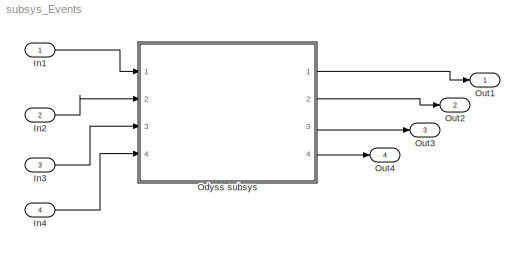
MODEL subsys_Events
KIND model
CONFIG AbsTol = auto
CONFIG FixedStep = auto
CONFIG MaxStep = auto
CONFIG MinStep = auto
CONFIG RelTol = 1e-3
CONFIG Solver = FixedStepDiscrete
CONFIG SolverMode = Auto
CONFIG StartTime = 0.0
CONFIG StopTime = 10.0
BLOCK [Inport] In1
  SampleTime = 1
BLOCK [Inport] In2
  Port = 2
  SampleTime = 1
BLOCK [Inport] In3
  Port = 3
  SampleTime = 1
BLOCK [Inport] In4
  Port = 4
  SampleTime = 1
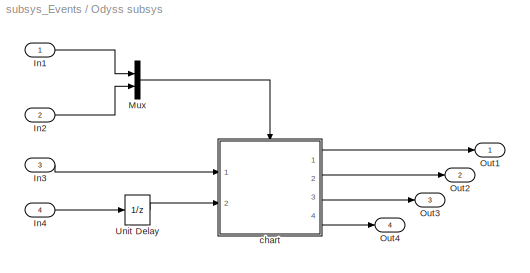
BLOCK [SubSystem] Odyss subsys
  Ports = [4, 4]
  TreatAsAtomicUnit = off
BLOCK [Inport] Odyss subsys/In1
  SampleTime = 1
BLOCK [Inport] Odyss subsys/In2
  Port = 2
  SampleTime = 1
BLOCK [Inport] Odyss subsys/In3
  Port = 3
  SampleTime = 1
BLOCK [Inport] Odyss subsys/In4
  Port = 4
  SampleTime = 1
BLOCK [Mux] Odyss subsys/Mux
  DisplayOption = bar
  Inputs = 2
  Ports = [2, 1]
BLOCK [Outport] Odyss subsys/Out1
BLOCK [Outport] Odyss subsys/Out2
  Port = 2
BLOCK [Outport] Odyss subsys/Out3
  Port = 3
BLOCK [Outport] Odyss subsys/Out4
  Port = 4
BLOCK [UnitDelay] Odyss subsys/Unit Delay
  SampleTime = -1
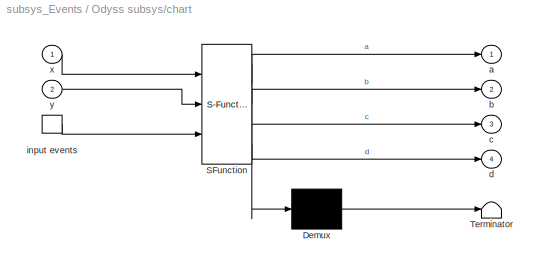
BLOCK [SubSystem] Odyss subsys/chart
  MaskDescription = Stateflow diagram
  MaskDisplay = plot(sf('Private','sfblk','xIcon'),sf('Private','sfblk','yIcon'));text(0.5,0,sf('Private', 'sfblk', 'tIcon'),'HorizontalAl','Center','VerticalAl','Bottom');
  MaskIconFrame = off
  MaskIconOpaque = off
  MaskIconRotate = none
  MaskIconUnits = autoscale
  MaskSelfModifiable = on
  MaskType = Stateflow
  Ports = [2, 4, 0, 1]
  TreatAsAtomicUnit = off
BLOCK [Demux] Odyss subsys/chart/ Demux 
  Outputs = 1
  Ports = [1, 1]
BLOCK [S-Function] Odyss subsys/chart/ SFunction 
  FunctionName = sf_sfun
  PortCounts = [3 5]
  Ports = [3, 5]
  Tag = Stateflow S-Function subsys_Events 2
BLOCK [Terminator] Odyss subsys/chart/ Terminator 
BLOCK [TriggerPort] Odyss subsys/chart/ input events 
  Ports = [0, 1]
  ShowOutputPort = on
  TriggerType = either
BLOCK [Outport] Odyss subsys/chart/a
BLOCK [Outport] Odyss subsys/chart/b
  Port = 2
BLOCK [Outport] Odyss subsys/chart/c
  Port = 3
BLOCK [Outport] Odyss subsys/chart/d
  Port = 4
BLOCK [Inport] Odyss subsys/chart/x
  PortDimensions = 1
BLOCK [Inport] Odyss subsys/chart/y
  Port = 2
  PortDimensions = 1
BLOCK [Outport] Out1
BLOCK [Outport] Out2
  Port = 2
BLOCK [Outport] Out3
  Port = 3
BLOCK [Outport] Out4
  Port = 4
LINE In1:1 -> Odyss subsys:1
LINE In2:1 -> Odyss subsys:2
LINE In3:1 -> Odyss subsys:3
LINE In4:1 -> Odyss subsys:4
LINE Odyss subsys/In1:1 -> Odyss subsys/Mux:1
LINE Odyss subsys/In2:1 -> Odyss subsys/Mux:2
LINE Odyss subsys/In3:1 -> Odyss subsys/chart:1
LINE Odyss subsys/In4:1 -> Odyss subsys/Unit Delay:1
LINE Odyss subsys/Mux:1 -> Odyss subsys/chart:trigger
LINE Odyss subsys/Unit Delay:1 -> Odyss subsys/chart:2
LINE Odyss subsys/chart/ Demux :1 -> Odyss subsys/chart/ Terminator :1
LINE Odyss subsys/chart/ SFunction :1 -> Odyss subsys/chart/ Demux :1
LINE Odyss subsys/chart/ SFunction :2 -> Odyss subsys/chart/a:1
LINE Odyss subsys/chart/ SFunction :3 -> Odyss subsys/chart/b:1
LINE Odyss subsys/chart/ SFunction :4 -> Odyss subsys/chart/c:1
LINE Odyss subsys/chart/ SFunction :5 -> Odyss subsys/chart/d:1
LINE Odyss subsys/chart/ input events :1 -> Odyss subsys/chart/ SFunction :3
LINE Odyss subsys/chart/x:1 -> Odyss subsys/chart/ SFunction :1
LINE Odyss subsys/chart/y:1 -> Odyss subsys/chart/ SFunction :2
LINE Odyss subsys/chart:1 -> Odyss subsys/Out1:1
LINE Odyss subsys/chart:2 -> Odyss subsys/Out2:1
LINE Odyss subsys/chart:3 -> Odyss subsys/Out3:1
LINE Odyss subsys/chart:4 -> Odyss subsys/Out4:1
LINE Odyss subsys:1 -> Out1:1
LINE Odyss subsys:2 -> Out2:1
LINE Odyss subsys:3 -> Out3:1
LINE Odyss subsys:4 -> Out4:1
CHART Odyss subsys/chart states=12 transitions=12
  STATE_LABEL 'Cb/\\nen:c=x+6'
  STATE_LABEL 'B'
  STATE_LABEL 'Ba/\\nen:b=x+3'
  STATE_LABEL 'Bb/\\nen:b=x+4+y'
  STATE_LABEL 'A'
  STATE_LABEL 'Aa/\\nen:a=x+1'
  STATE_LABEL 'Ab/\\nen:a=x+2'
  STATE_LABEL 'Ca/\\nen:c=x+5'
  STATE_LABEL 'D'
  STATE_LABEL 'Da/\\nen:d=x+7'
  STATE_LABEL 'Db/\\nen:d=x+8'
  STATE_LABEL 'C'
